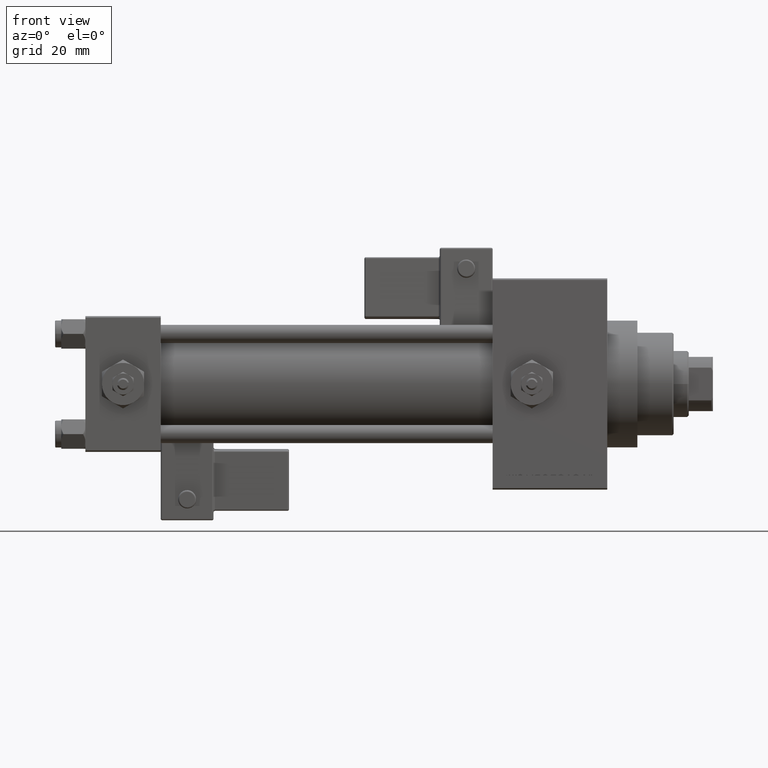
[diagram: clean part render]
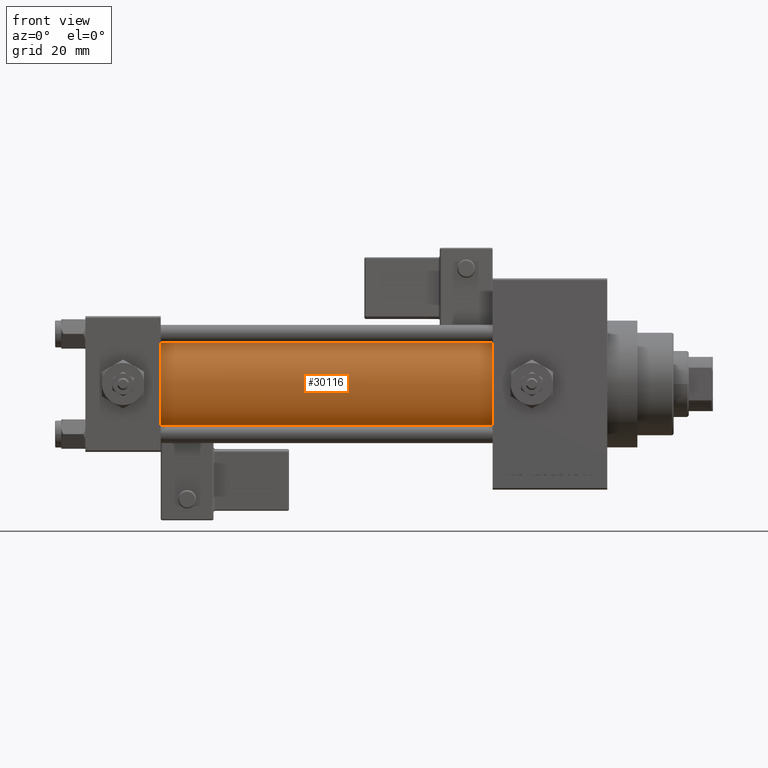
[diagram: same view with one face highlighted and labeled with its STEP entity id]
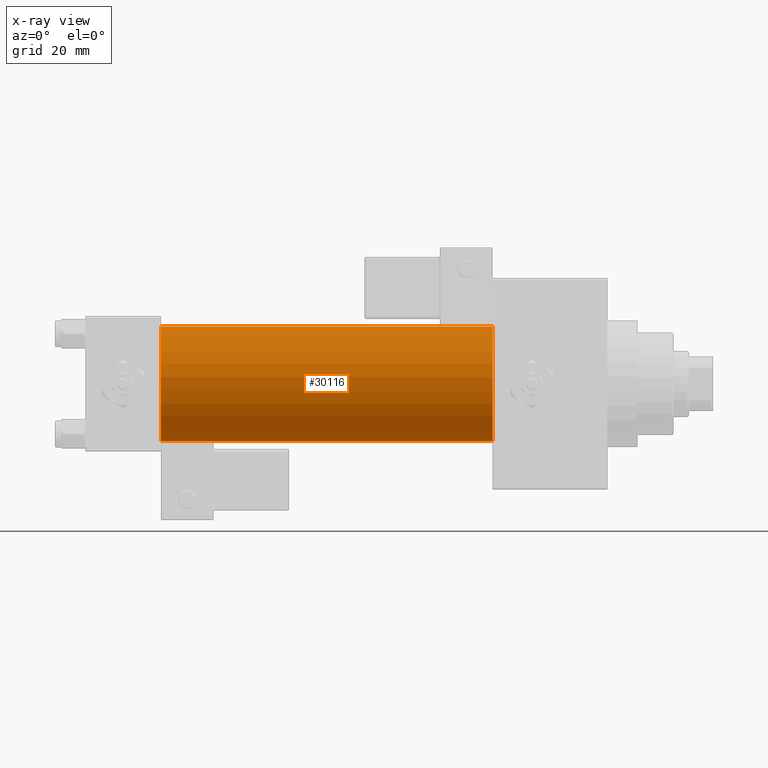
[diagram: x-ray of the same camera — body ghosted, the highlighted face saturated]
A machine part, front view. The second image highlights one B-rep face of the part: STEP entity #30116.
The next image is the same camera in x-ray: the body ghosted, the highlighted face saturated — about 0% of this face is hidden behind the body in this view.
In plain terms, the highlighted cylindrical surface (partial cylindrical patch) has radius 19 mm, axis along (-1, -0, -0).
Its self-contained STEP definition (entity closure, byte-faithful):
#433 = VERTEX_POINT ( 'NONE', #719 ) ;
#719 = CARTESIAN_POINT ( 'NONE',  ( 135.0000000000000000, -2.752562955852396712E-16, -19.00000000000000000 ) ) ;
#1181 = EDGE_LOOP ( 'NONE', ( #38567, #33887, #21654, #47257 ) ) ;
#1502 = DIRECTION ( 'NONE',  ( 1.000000000000000000, 0.000000000000000000, 0.000000000000000000 ) ) ;
#1560 = CARTESIAN_POINT ( 'NONE',  ( 24.99999999999999289, -2.752562955852396712E-16, -19.00000000000000000 ) ) ;
#1870 = CYLINDRICAL_SURFACE ( 'NONE', #39154, 19.00000000000000000 ) ;
#1920 = VERTEX_POINT ( 'NONE', #39049 ) ;
#2381 = AXIS2_PLACEMENT_3D ( 'NONE', #47516, #11911, #20995 ) ;
#2511 = VECTOR ( 'NONE', #26131, 1000.000000000000000 ) ;
#4508 = VERTEX_POINT ( 'NONE', #23836 ) ;
#4988 = CARTESIAN_POINT ( 'NONE',  ( 135.0000000000000000, -2.602085213965210642E-15, 0.000000000000000000 ) ) ;
#5277 = VERTEX_POINT ( 'NONE', #1560 ) ;
#6533 = CIRCLE ( 'NONE', #2381, 19.00000000000000000 ) ;
#10427 = EDGE_CURVE ( 'NONE', #4508, #5277, #6533, .T. ) ;
#11911 = DIRECTION ( 'NONE',  ( 1.000000000000000000, -0.000000000000000000, 0.000000000000000000 ) ) ;
#16240 = EDGE_CURVE ( 'NONE', #1920, #4508, #34439, .T. ) ;
#20995 = DIRECTION ( 'NONE',  ( 0.000000000000000000, 0.000000000000000000, 1.000000000000000000 ) ) ;
#21654 = ORIENTED_EDGE ( 'NONE', *, *, #16240, .T. ) ;
#21873 = FACE_OUTER_BOUND ( 'NONE', #1181, .T. ) ;
#23836 = CARTESIAN_POINT ( 'NONE',  ( 24.99999999999999289, -2.602085213965210642E-15, 19.00000000000000000 ) ) ;
#26131 = DIRECTION ( 'NONE',  ( -1.000000000000000000, -0.000000000000000000, -0.000000000000000000 ) ) ;
#26689 = EDGE_CURVE ( 'NONE', #1920, #433, #44858, .T. ) ;
#30116 = ADVANCED_FACE ( 'NONE', ( #21873 ), #1870, .T. ) ;
#30829 = CARTESIAN_POINT ( 'NONE',  ( 135.0000000000000000, -2.752562955852396712E-16, -19.00000000000000000 ) ) ;
#33203 = AXIS2_PLACEMENT_3D ( 'NONE', #44628, #1502, #48791 ) ;
#33887 = ORIENTED_EDGE ( 'NONE', *, *, #26689, .F. ) ;
#34439 = LINE ( 'NONE', #38079, #2511 ) ;
#37710 = DIRECTION ( 'NONE',  ( 0.000000000000000000, 0.000000000000000000, 1.000000000000000000 ) ) ;
#38079 = CARTESIAN_POINT ( 'NONE',  ( 135.0000000000000000, -2.602085213965210642E-15, 19.00000000000000000 ) ) ;
#38567 = ORIENTED_EDGE ( 'NONE', *, *, #41889, .F. ) ;
#39049 = CARTESIAN_POINT ( 'NONE',  ( 135.0000000000000000, -2.602085213965210642E-15, 19.00000000000000000 ) ) ;
#39115 = LINE ( 'NONE', #30829, #39478 ) ;
#39154 = AXIS2_PLACEMENT_3D ( 'NONE', #4988, #44470, #37710 ) ;
#39478 = VECTOR ( 'NONE', #46690, 1000.000000000000000 ) ;
#41889 = EDGE_CURVE ( 'NONE', #433, #5277, #39115, .T. ) ;
#44470 = DIRECTION ( 'NONE',  ( -1.000000000000000000, -0.000000000000000000, -0.000000000000000000 ) ) ;
#44628 = CARTESIAN_POINT ( 'NONE',  ( 135.0000000000000000, -2.602085213965210642E-15, 0.000000000000000000 ) ) ;
#44858 = CIRCLE ( 'NONE', #33203, 19.00000000000000000 ) ;
#46690 = DIRECTION ( 'NONE',  ( -1.000000000000000000, -0.000000000000000000, -0.000000000000000000 ) ) ;
#47257 = ORIENTED_EDGE ( 'NONE', *, *, #10427, .T. ) ;
#47516 = CARTESIAN_POINT ( 'NONE',  ( 24.99999999999999289, -2.602085213965210642E-15, 0.000000000000000000 ) ) ;
#48791 = DIRECTION ( 'NONE',  ( 0.000000000000000000, 0.000000000000000000, -1.000000000000000000 ) ) ;